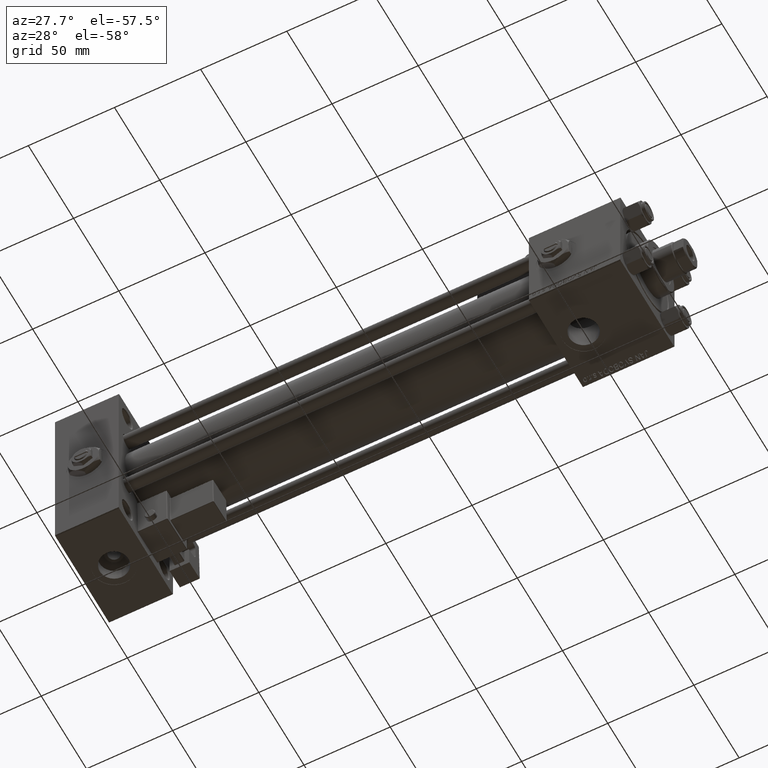
[diagram: clean part render]
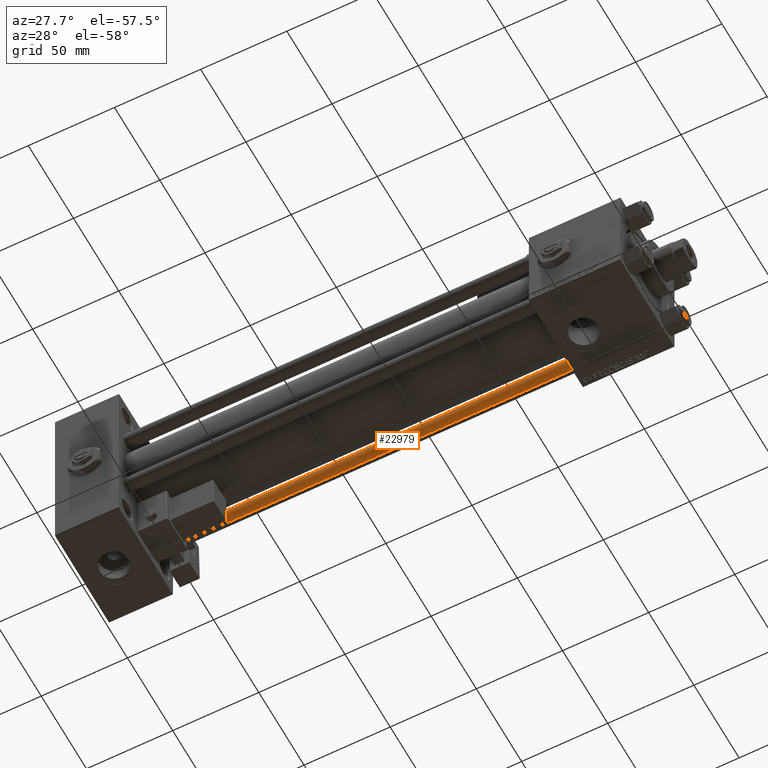
[diagram: same view with one face highlighted and labeled with its STEP entity id]
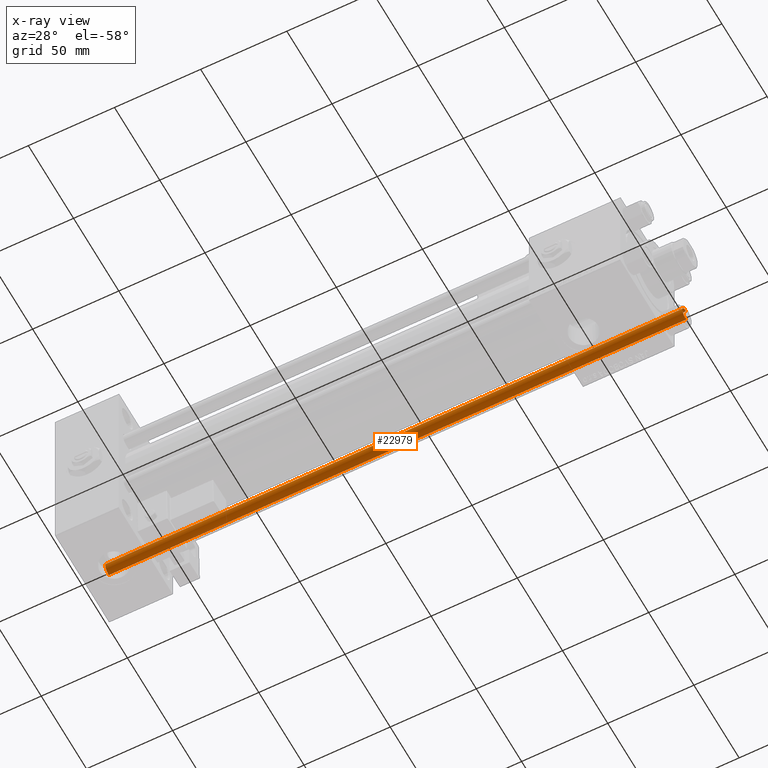
[diagram: x-ray of the same camera — body ghosted, the highlighted face saturated]
A machine part, auxiliary view. The second image highlights one B-rep face of the part: STEP entity #22979.
The next image is the same camera in x-ray: the body ghosted, the highlighted face saturated — about 0% of this face is hidden behind the body in this view.
In plain terms, the highlighted cylindrical surface (edge-blend (fillet) strip) has radius 4 mm, axis along (-1, 0, 0).
Its self-contained STEP definition (entity closure, byte-faithful):
#197 = VERTEX_POINT ( 'NONE', #3666 ) ;
#1199 = CARTESIAN_POINT ( 'NONE',  ( -4.000000000000000000, 0.000000000000000000, 336.0000000000000000 ) ) ;
#3666 = CARTESIAN_POINT ( 'NONE',  ( -4.000000000000000000, 0.000000000000000000, 335.5000000000001705 ) ) ;
#3990 = CIRCLE ( 'NONE', #32131, 4.000000000000000000 ) ;
#4205 = ORIENTED_EDGE ( 'NONE', *, *, #36625, .T. ) ;
#4810 = DIRECTION ( 'NONE',  ( -0.000000000000000000, -0.000000000000000000, -1.000000000000000000 ) ) ;
#4957 = ORIENTED_EDGE ( 'NONE', *, *, #43778, .F. ) ;
#5082 = FACE_OUTER_BOUND ( 'NONE', #8220, .T. ) ;
#5831 = LINE ( 'NONE', #22008, #18725 ) ;
#7337 = EDGE_CURVE ( 'NONE', #38939, #42956, #5831, .T. ) ;
#8220 = EDGE_LOOP ( 'NONE', ( #29346, #43190, #4205, #4957 ) ) ;
#14103 = CARTESIAN_POINT ( 'NONE',  ( 4.000000000000000000, 4.898587196589411843E-16, 0.5000000000003335110 ) ) ;
#14382 = CARTESIAN_POINT ( 'NONE',  ( 0.000000000000000000, 0.000000000000000000, 336.0000000000000000 ) ) ;
#14909 = DIRECTION ( 'NONE',  ( 0.000000000000000000, 0.000000000000000000, -1.000000000000000000 ) ) ;
#15221 = EDGE_CURVE ( 'NONE', #197, #38939, #3990, .T. ) ;
#18725 = VECTOR ( 'NONE', #35132, 1000.000000000000000 ) ;
#20480 = CARTESIAN_POINT ( 'NONE',  ( 0.000000000000000000, 0.000000000000000000, 0.5000000000003335110 ) ) ;
#21532 = LINE ( 'NONE', #1199, #48530 ) ;
#22008 = CARTESIAN_POINT ( 'NONE',  ( 4.000000000000000000, 4.898587196589411843E-16, 336.0000000000000000 ) ) ;
#22979 = ADVANCED_FACE ( 'NONE', ( #5082 ), #50885, .T. ) ;
#28627 = VERTEX_POINT ( 'NONE', #32347 ) ;
#29346 = ORIENTED_EDGE ( 'NONE', *, *, #15221, .T. ) ;
#31073 = CARTESIAN_POINT ( 'NONE',  ( 0.000000000000000000, 0.000000000000000000, 335.5000000000001705 ) ) ;
#31603 = DIRECTION ( 'NONE',  ( 1.000000000000000000, 0.000000000000000000, 0.000000000000000000 ) ) ;
#32131 = AXIS2_PLACEMENT_3D ( 'NONE', #31073, #14909, #31603 ) ;
#32347 = CARTESIAN_POINT ( 'NONE',  ( -4.000000000000000000, 0.000000000000000000, 0.5000000000003335110 ) ) ;
#34975 = CARTESIAN_POINT ( 'NONE',  ( 4.000000000000000000, 4.898587196589411843E-16, 335.5000000000001705 ) ) ;
#35132 = DIRECTION ( 'NONE',  ( -0.000000000000000000, -0.000000000000000000, -1.000000000000000000 ) ) ;
#36625 = EDGE_CURVE ( 'NONE', #42956, #28627, #37839, .T. ) ;
#36971 = AXIS2_PLACEMENT_3D ( 'NONE', #20480, #45707, #49565 ) ;
#37839 = CIRCLE ( 'NONE', #36971, 4.000000000000000000 ) ;
#38939 = VERTEX_POINT ( 'NONE', #34975 ) ;
#39053 = DIRECTION ( 'NONE',  ( -0.000000000000000000, -0.000000000000000000, -1.000000000000000000 ) ) ;
#42956 = VERTEX_POINT ( 'NONE', #14103 ) ;
#43190 = ORIENTED_EDGE ( 'NONE', *, *, #7337, .T. ) ;
#43778 = EDGE_CURVE ( 'NONE', #197, #28627, #21532, .T. ) ;
#45707 = DIRECTION ( 'NONE',  ( -0.000000000000000000, -0.000000000000000000, 1.000000000000000000 ) ) ;
#48530 = VECTOR ( 'NONE', #4810, 1000.000000000000000 ) ;
#49565 = DIRECTION ( 'NONE',  ( 1.000000000000000000, 0.000000000000000000, 0.000000000000000000 ) ) ;
#50770 = AXIS2_PLACEMENT_3D ( 'NONE', #14382, #39053, #51683 ) ;
#50885 = CYLINDRICAL_SURFACE ( 'NONE', #50770, 4.000000000000000000 ) ;
#51683 = DIRECTION ( 'NONE',  ( -1.000000000000000000, 0.000000000000000000, 0.000000000000000000 ) ) ;